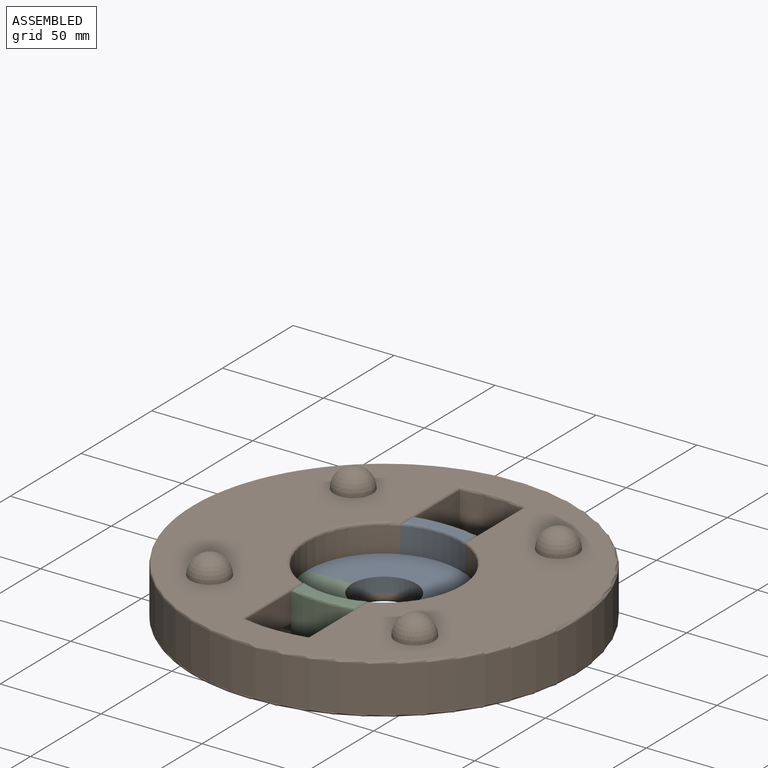
[diagram: assembled view]
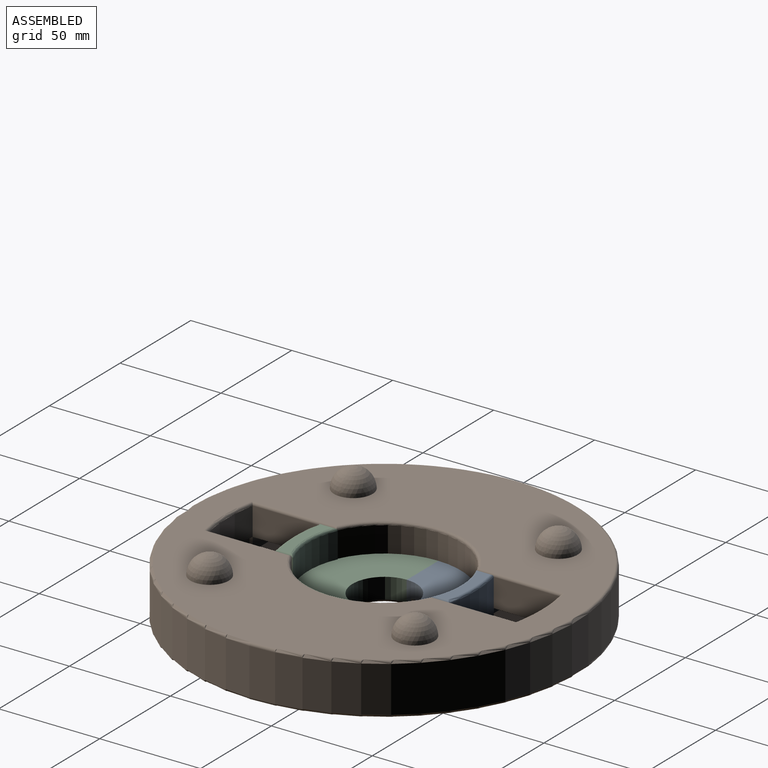
[diagram: assembled view, second angle]
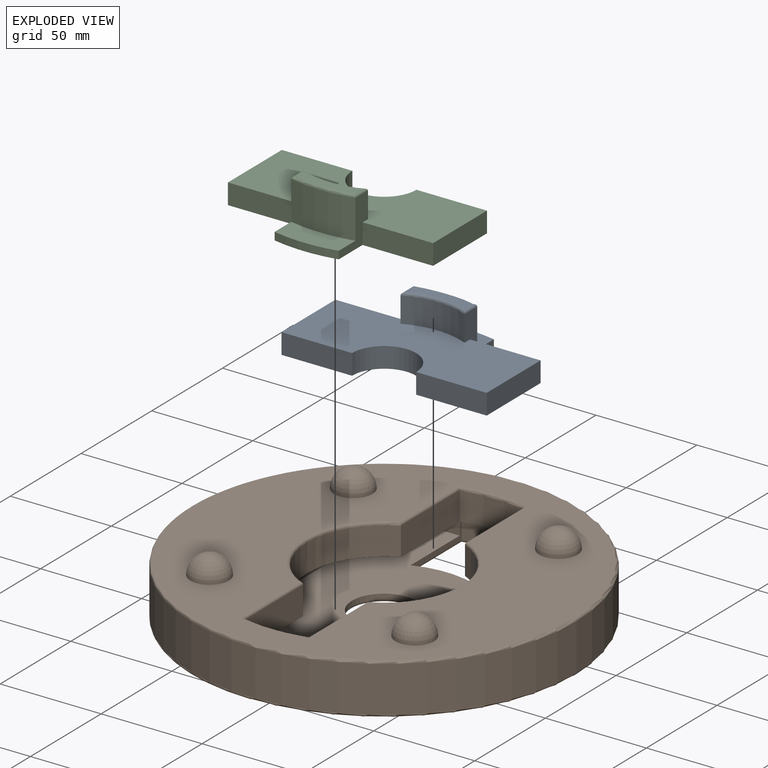
[diagram: exploded view]
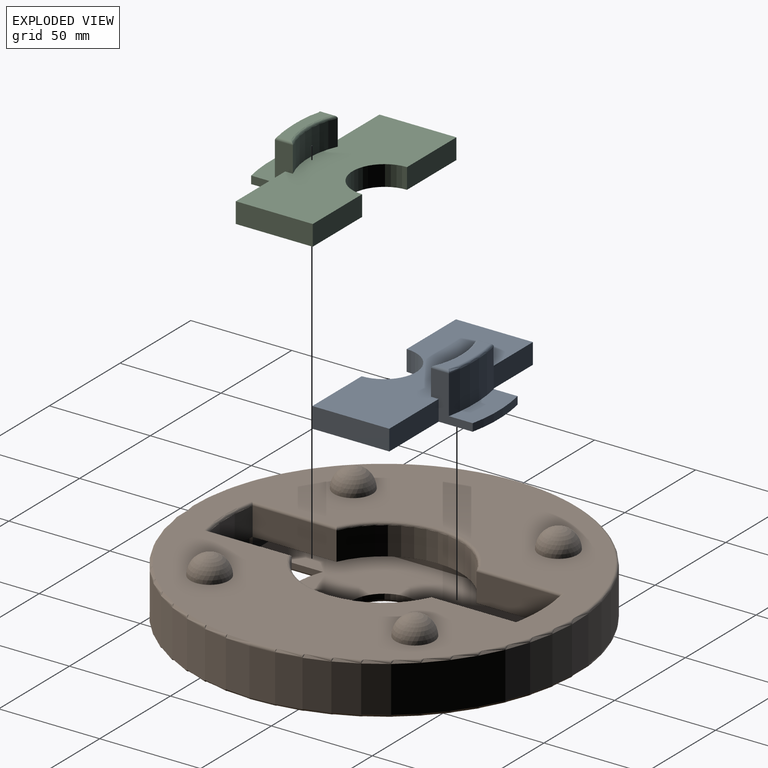
[diagram: exploded view, second angle]
ASSEMBLY  parts=3 mates=3
PART A: 31 faces, bbox 101.6x56.6x24.1 mm
  f0: plane 101.6x56.63mm, normal (0,0,-1), area 3749.2mm2, adj f3,f4,f5,f6,f7,f8,f9,f10
  f1: cylinder r=77.47mm len=31.75mm, axis (0,0,-1), area 609.2mm2, adj f4,f5,f16,f25
  f2: plane 101.6x38.1mm, normal (0,0,1), area 3428.2mm2, adj f3,f6,f7,f8,f9,f10,f11,f12
  f3: plane 34.93x10.16mm, normal (0,-1,0), area 354.8mm2, adj f0,f2,f4,f11
  f4: plane 22.86x5.08mm, normal (-1,0,0), area 116.1mm2, adj f0,f1,f3,f14,f17,f23
  f5: plane 22.86x5.08mm, normal (1,0,0), area 116.1mm2, adj f0,f1,f6,f12,f18,f24
  f6: plane 34.93x10.16mm, normal (0,-1,0), area 354.8mm2, adj f0,f2,f5,f7
  f7: plane 38.1x10.16mm, normal (1,0,0), area 387.1mm2, adj f0,f2,f6,f8
  f8: plane 34.93x10.16mm, normal (0,1,0), area 354.8mm2, adj f0,f2,f7,f9
  f9: cylinder r=15.88mm len=31.75mm, axis (0,0,-1), area 506.7mm2, adj f0,f2,f8,f10
  f10: plane 34.93x10.16mm, normal (0,1,0), area 354.8mm2, adj f0,f2,f9,f11
  f11: plane 38.1x10.16mm, normal (-1,0,0), area 387.1mm2, adj f0,f2,f3,f10
  f12: plane 12.7x3.81mm, normal (1,0,0), area 48.4mm2, adj f2,f5,f13,f22
  f13: cylinder r=38.1mm len=31.75mm, axis (0,0,-1), area 415.9mm2, adj f2,f12,f14,f20
  f14: plane 12.7x3.81mm, normal (-1,0,0), area 48.4mm2, adj f2,f4,f13,f21
  f15: plane 29.21x7.34mm, normal (0,0,1), area 145.5mm2, adj f20,f21,f22,f23,f24,f25
  f16: plane 31.75x13.45mm, normal (0,0,1), area 374.6mm2, adj f1,f17,f18,f19
  f17: plane 11.78x3.81mm, normal (-1,0,0), area 44.9mm2, adj f0,f4,f16,f19
  f18: plane 11.78x3.81mm, normal (1,0,0), area 44.9mm2, adj f0,f5,f16,f19
  f19: cylinder r=76.2mm len=31.75mm, axis (0,0,-1), area 121.9mm2, adj f0,f16,f17,f18
  f20: torus R=39.37mm, axis (0,0,1), area 63.3mm2, adj f13,f15,f21,f22
  f21: cylinder r=1.27mm len=3.81mm, axis (0,1,0), area 6.2mm2, adj f14,f15,f20,f23
  f22: cylinder r=1.27mm len=3.81mm, axis (0,-1,0), area 6.2mm2, adj f12,f15,f20,f24
  f23: cylinder r=1.27mm len=5.08mm, axis (0,1,0), area 9.4mm2, adj f4,f15,f21,f25
  f24: cylinder r=1.27mm len=5.08mm, axis (0,-1,0), area 9.4mm2, adj f5,f15,f22,f25
  f25: torus R=76.2mm, axis (0,0,1), area 61.9mm2, adj f1,f15,f23,f24
  f26: plane 11.78x3.05mm, normal (1,0,0), area 35.9mm2, adj f0,f27,f29,f30
  f27: cylinder r=72.84mm len=25.4mm, axis (0,0,-1), area 77.8mm2, adj f0,f26,f28,f30
  f28: plane 11.78x3.05mm, normal (-1,0,0), area 35.9mm2, adj f0,f27,f29,f30
  f29: cylinder r=83.82mm len=25.4mm, axis (0,0,-1), area 77.7mm2, adj f0,f26,f28,f30
  f30: plane 25.4x12.75mm, normal (0,0,-1), area 296.7mm2, adj f26,f27,f28,f29
PART B: 54 faces, bbox 206.2x206.2x34.9 mm
  f0: plane 187.96x187.96mm, normal (0,0,-1), area 24216.7mm2, adj f23,f45,f46,f47,f48,f49,f50,f51
  f1: plane 152.4x88.9mm, normal (0,0,1), area 10679.3mm2, adj f2,f3,f25,f27,f28,f29,f35,f36
  f2: plane 28.58x6.35mm, normal (0,-1,0), area 181.5mm2, adj f1,f24,f27,f40
  f3: plane 28.58x6.35mm, normal (0,1,0), area 181.5mm2, adj f1,f24,f27,f38
  f4: cylinder r=95.25mm len=190.5mm, axis (0,0,1), area 13681.1mm2, adj f22,f23
  f5: plane 187.96x187.96mm, normal (0,0,1), area 18967.1mm2, adj f14,f15,f16,f17,f18,f19,f20,f21
  f6: cylinder r=38.1mm len=69.27mm, axis (0,0,1), area 1214.6mm2, adj f7,f13,f16,f24
  f7: plane 41.57x13.97mm, normal (1,0,0), area 580.7mm2, adj f6,f8,f14,f24
  f8: cylinder r=77.47mm len=31.75mm, axis (0,0,1), area 446.7mm2, adj f7,f9,f15,f34
  f9: plane 41.57x13.97mm, normal (-1,0,0), area 580.7mm2, adj f8,f10,f17,f26
  f10: cylinder r=38.1mm len=69.27mm, axis (0,0,1), area 1214.6mm2, adj f9,f11,f19,f26
  f11: plane 41.57x13.97mm, normal (-1,0,0), area 580.7mm2, adj f10,f12,f21,f26
  f12: cylinder r=77.47mm len=31.75mm, axis (0,0,1), area 446.7mm2, adj f11,f13,f20,f39
  f13: plane 41.57x13.97mm, normal (1,0,0), area 580.7mm2, adj f6,f12,f18,f24
  f14: cylinder r=1.27mm len=42.59mm, axis (0,1,0), area 83.1mm2, adj f5,f7,f15,f16
  f15: torus R=78.74mm, axis (0,0,1), area 65.7mm2, adj f5,f8,f14,f17
  f16: torus R=39.37mm, axis (0,0,1), area 174.4mm2, adj f5,f6,f14,f18
  f17: cylinder r=1.27mm len=42.59mm, axis (0,-1,0), area 83.1mm2, adj f5,f9,f15,f19
  f18: cylinder r=1.27mm len=42.59mm, axis (0,1,0), area 83.1mm2, adj f5,f13,f16,f20
  f19: torus R=39.37mm, axis (0,0,1), area 174.4mm2, adj f5,f10,f17,f21
  f20: torus R=78.74mm, axis (0,0,1), area 65.7mm2, adj f5,f12,f18,f21
  f21: cylinder r=1.27mm len=42.59mm, axis (0,-1,0), area 83.1mm2, adj f5,f11,f19,f20
  f22: torus R=93.98mm, axis (0,0,1), area 1188.1mm2, adj f4,f5
  f23: torus R=93.98mm, axis (0,0,1), area 1188.1mm2, adj f0,f4
  f24: plane 152.4x28.58mm, normal (0,0,-1), area 3248.3mm2, adj f2,f3,f6,f7,f13,f27
  f25: plane 152.4x6.35mm, normal (-1,0,0), area 967.7mm2, adj f1,f26,f28,f29
  f26: plane 152.4x28.58mm, normal (0,0,-1), area 3248.3mm2, adj f9,f10,f11,f25,f28,f29
  f27: plane 152.4x6.35mm, normal (1,0,0), area 967.7mm2, adj f1,f2,f3,f24
  f28: plane 28.58x6.35mm, normal (0,-1,0), area 181.5mm2, adj f1,f25,f26,f42
  f29: plane 28.58x6.35mm, normal (0,1,0), area 181.5mm2, adj f1,f25,f26,f36
  f30: sphere r=9.53mm, area 570mm2, adj f5
  f31: sphere r=9.53mm, area 570mm2, adj f5
  f32: sphere r=9.53mm, area 570mm2, adj f5
  f33: sphere r=9.53mm, area 570mm2, adj f5
  f34: plane 31.75x3.18mm, normal (0,0,-1), area 49mm2, adj f8,f36,f37,f38
  f35: cylinder r=44.45mm len=31.75mm, axis (0,0,-1), area 82.5mm2, adj f1,f36,f38,f46
  f36: plane 36.25x8.89mm, normal (-1,0,0), area 102.1mm2, adj f1,f29,f34,f35,f37,f48
  f37: cylinder r=79.38mm len=31.75mm, axis (0,0,-1), area 284.2mm2, adj f34,f36,f38,f47
  f38: plane 36.25x8.89mm, normal (1,0,0), area 102.1mm2, adj f1,f3,f34,f35,f37,f45
  f39: plane 31.75x3.18mm, normal (0,0,-1), area 49mm2, adj f12,f40,f41,f42
  f40: plane 36.25x8.89mm, normal (1,0,0), area 102.1mm2, adj f1,f2,f39,f41,f43,f51
  f41: cylinder r=79.38mm len=31.75mm, axis (0,0,-1), area 284.2mm2, adj f39,f40,f42,f53
  f42: plane 36.25x8.89mm, normal (-1,0,0), area 102.1mm2, adj f1,f28,f39,f41,f43,f52
  f43: cylinder r=44.45mm len=31.75mm, axis (0,0,-1), area 82.5mm2, adj f1,f40,f42,f50
  f44: cylinder r=15.88mm len=31.75mm, axis (0,0,-1), area 253.4mm2, adj f1,f49
  f45: cylinder r=1.27mm len=39.17mm, axis (0,1,0), area 74.4mm2, adj f0,f38,f46,f47
  f46: torus R=43.18mm, axis (0,0,1), area 66.8mm2, adj f0,f35,f45,f48
  f47: torus R=80.64mm, axis (0,0,1), area 65.6mm2, adj f0,f37,f45,f48
  f48: cylinder r=1.27mm len=39.17mm, axis (0,-1,0), area 74.4mm2, adj f0,f36,f46,f47
  f49: torus R=17.14mm, axis (0,0,1), area 204.8mm2, adj f0,f44
  f50: torus R=43.18mm, axis (0,0,1), area 66.8mm2, adj f0,f43,f51,f52
  f51: cylinder r=1.27mm len=39.17mm, axis (0,1,0), area 74.4mm2, adj f0,f40,f50,f53
  f52: cylinder r=1.27mm len=39.17mm, axis (0,-1,0), area 74.4mm2, adj f0,f42,f50,f53
  f53: torus R=80.64mm, axis (0,0,1), area 65.6mm2, adj f0,f41,f51,f52
PART C: same geometry as A
PLACE A rot(axis=(0,0,1),180deg) t=(-3.33,33.53,-21.73)mm
PLACE B t=(-3.34,33.47,-15.38)mm fixed
PLACE C rot(axis=(0,0,-1),0deg) t=(-3.34,33.72,-21.73)mm
MATE planar C.f15 <-> B.f4  axis (0,0,1) through (-3.34,-6.82,-2.68)mm
MATE planar A.f15 <-> B.f5  axis (0,0,1) through (-3.33,74.07,-2.68)mm
MATE planar C.f4 <-> B.f7  axis (-1,0,0) through (-19.22,-6.92,-15.38)mm
